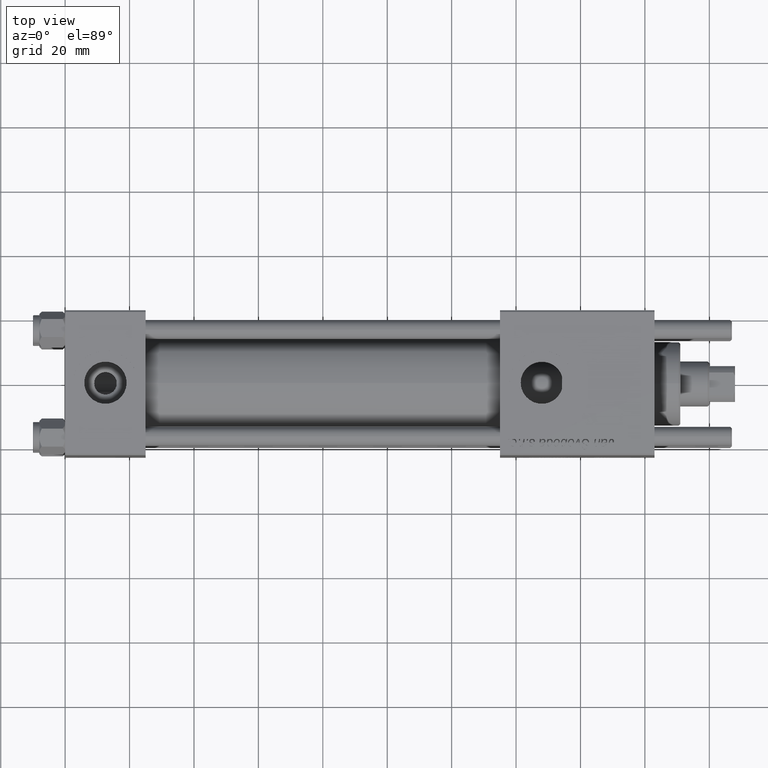
[diagram: clean part render]
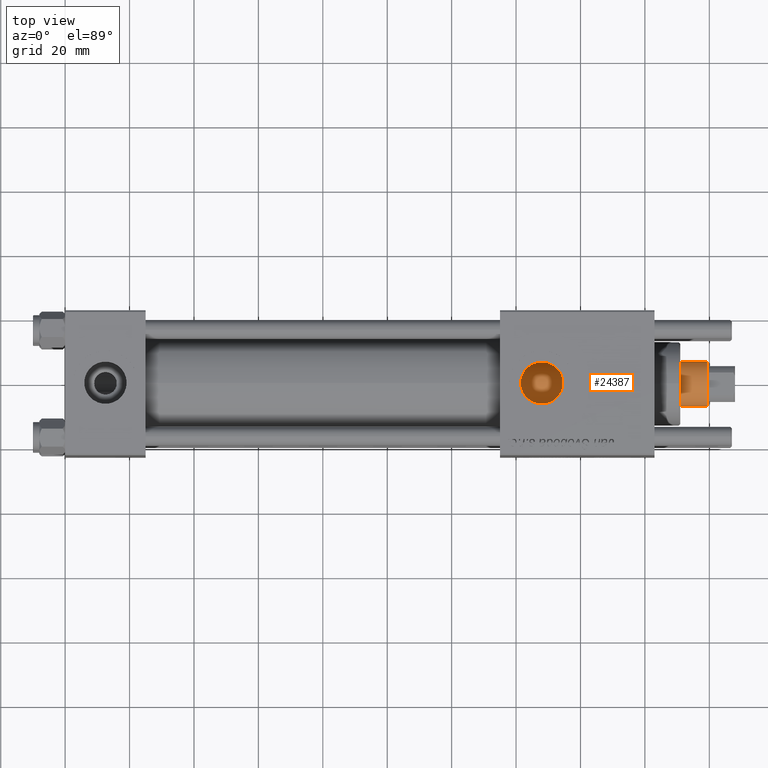
[diagram: same view with one face highlighted and labeled with its STEP entity id]
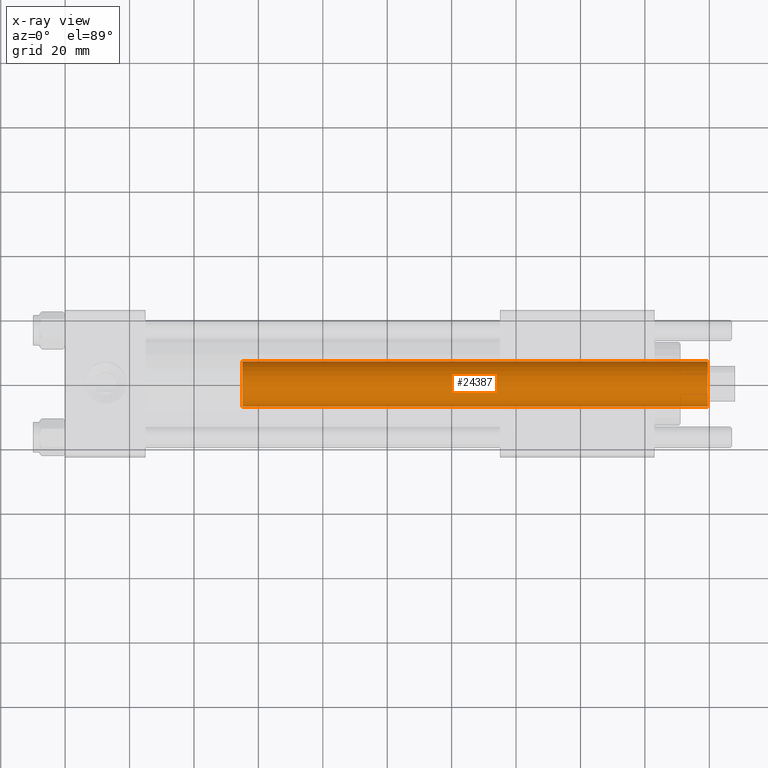
[diagram: x-ray of the same camera — body ghosted, the highlighted face saturated]
A machine part, top view. The second image highlights one B-rep face of the part: STEP entity #24387.
The next image is the same camera in x-ray: the body ghosted, the highlighted face saturated — about 0% of this face is hidden behind the body in this view.
In plain terms, the highlighted cylindrical surface (edge-blend (fillet) strip) has radius 7 mm, axis along (-1, 0, 0).
Its self-contained STEP definition (entity closure, byte-faithful):
#1806 = CARTESIAN_POINT ( 'NONE',  ( 7.000000000000000000, 8.572527594031473190E-16, 175.0000000000000000 ) ) ;
#2830 = LINE ( 'NONE', #19797, #39146 ) ;
#5563 = LINE ( 'NONE', #1806, #26028 ) ;
#6614 = FACE_OUTER_BOUND ( 'NONE', #55020, .T. ) ;
#7461 = DIRECTION ( 'NONE',  ( -1.000000000000000000, 0.000000000000000000, 0.000000000000000000 ) ) ;
#9308 = DIRECTION ( 'NONE',  ( 1.000000000000000000, 0.000000000000000000, 0.000000000000000000 ) ) ;
#10157 = VERTEX_POINT ( 'NONE', #12292 ) ;
#10927 = CARTESIAN_POINT ( 'NONE',  ( 0.000000000000000000, 0.000000000000000000, 175.0000000000000000 ) ) ;
#12292 = CARTESIAN_POINT ( 'NONE',  ( -7.000000000000000000, 0.000000000000000000, 174.4999999999999716 ) ) ;
#13606 = CARTESIAN_POINT ( 'NONE',  ( 7.000000000000000000, 8.572527594031473190E-16, 174.4999999999999716 ) ) ;
#13959 = CARTESIAN_POINT ( 'NONE',  ( -7.000000000000000000, 0.000000000000000000, 30.00000000000000000 ) ) ;
#14101 = ORIENTED_EDGE ( 'NONE', *, *, #27603, .F. ) ;
#16048 = DIRECTION ( 'NONE',  ( -0.000000000000000000, -0.000000000000000000, -1.000000000000000000 ) ) ;
#16089 = DIRECTION ( 'NONE',  ( -0.000000000000000000, -0.000000000000000000, -1.000000000000000000 ) ) ;
#16907 = ORIENTED_EDGE ( 'NONE', *, *, #34459, .T. ) ;
#17935 = CIRCLE ( 'NONE', #52803, 7.000000000000000000 ) ;
#19797 = CARTESIAN_POINT ( 'NONE',  ( -7.000000000000000000, 0.000000000000000000, 175.0000000000000000 ) ) ;
#23654 = DIRECTION ( 'NONE',  ( -0.000000000000000000, -0.000000000000000000, -1.000000000000000000 ) ) ;
#24043 = EDGE_CURVE ( 'NONE', #42293, #10157, #42455, .T. ) ;
#24387 = ADVANCED_FACE ( 'NONE', ( #6614 ), #54882, .T. ) ;
#24456 = ORIENTED_EDGE ( 'NONE', *, *, #24043, .T. ) ;
#25702 = CARTESIAN_POINT ( 'NONE',  ( 0.000000000000000000, 0.000000000000000000, 174.4999999999999716 ) ) ;
#26002 = ORIENTED_EDGE ( 'NONE', *, *, #43740, .T. ) ;
#26028 = VECTOR ( 'NONE', #23654, 1000.000000000000000 ) ;
#27603 = EDGE_CURVE ( 'NONE', #42293, #37002, #5563, .T. ) ;
#30515 = AXIS2_PLACEMENT_3D ( 'NONE', #10927, #16089, #7461 ) ;
#34459 = EDGE_CURVE ( 'NONE', #54152, #37002, #17935, .T. ) ;
#37002 = VERTEX_POINT ( 'NONE', #40631 ) ;
#37951 = DIRECTION ( 'NONE',  ( 0.000000000000000000, 0.000000000000000000, 1.000000000000000000 ) ) ;
#39146 = VECTOR ( 'NONE', #16048, 1000.000000000000000 ) ;
#40631 = CARTESIAN_POINT ( 'NONE',  ( 7.000000000000000000, 8.572527594031473190E-16, 30.00000000000000000 ) ) ;
#42293 = VERTEX_POINT ( 'NONE', #13606 ) ;
#42455 = CIRCLE ( 'NONE', #52532, 7.000000000000000000 ) ;
#43740 = EDGE_CURVE ( 'NONE', #10157, #54152, #2830, .T. ) ;
#51431 = CARTESIAN_POINT ( 'NONE',  ( 0.000000000000000000, 0.000000000000000000, 30.00000000000000000 ) ) ;
#52532 = AXIS2_PLACEMENT_3D ( 'NONE', #25702, #52698, #9308 ) ;
#52698 = DIRECTION ( 'NONE',  ( 0.000000000000000000, 0.000000000000000000, -1.000000000000000000 ) ) ;
#52803 = AXIS2_PLACEMENT_3D ( 'NONE', #51431, #37951, #55450 ) ;
#54152 = VERTEX_POINT ( 'NONE', #13959 ) ;
#54882 = CYLINDRICAL_SURFACE ( 'NONE', #30515, 7.000000000000000000 ) ;
#55020 = EDGE_LOOP ( 'NONE', ( #14101, #24456, #26002, #16907 ) ) ;
#55450 = DIRECTION ( 'NONE',  ( 1.000000000000000000, 0.000000000000000000, 0.000000000000000000 ) ) ;